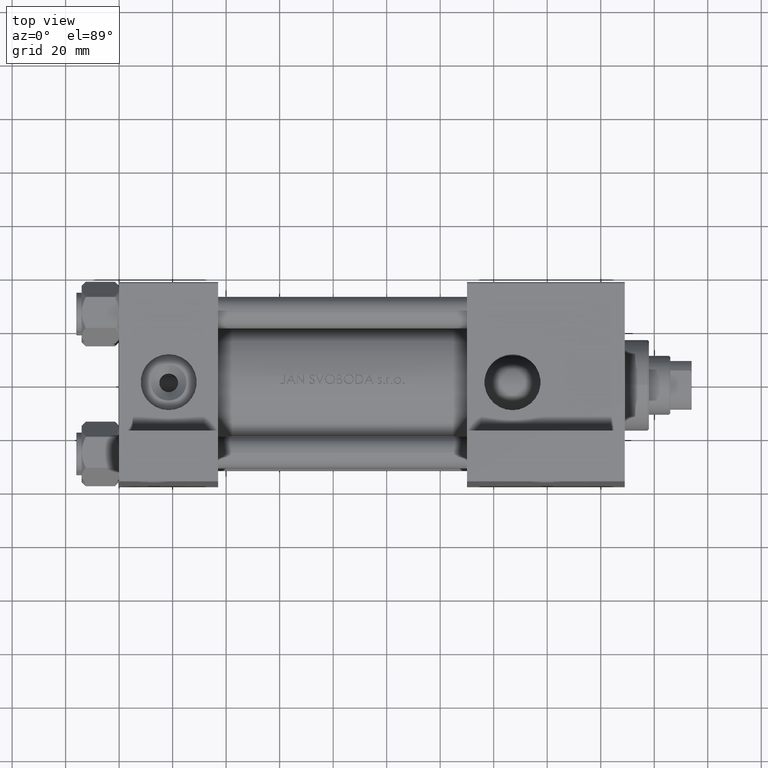
[diagram: clean part render]
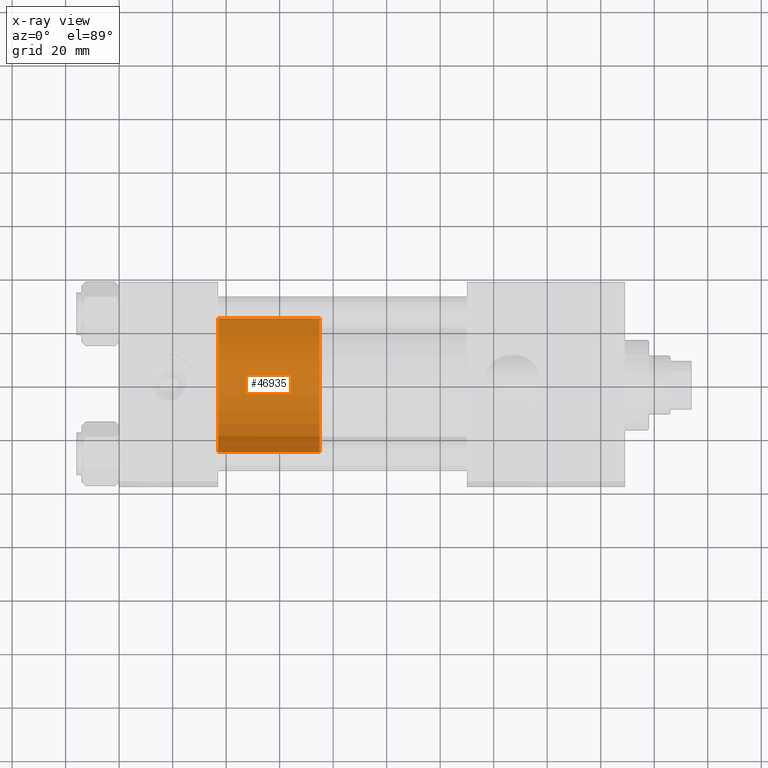
[diagram: x-ray — body ghosted, one internal face saturated and labeled with its STEP entity id]
A machine part, top view, then the same camera in x-ray: the body is ghosted and one INTERNAL B-rep face — a face not visible from any outside direction — is saturated and labeled: STEP entity #46935.
In plain terms, the highlighted cylindrical surface (partial cylindrical patch) has radius 25 mm, axis along (-1, 0, 0).
Its self-contained STEP definition (entity closure, byte-faithful):
#60 = EDGE_CURVE ( 'NONE', #29623, #43035, #26314, .T. ) ;
#605 = CARTESIAN_POINT ( 'NONE',  ( 25.00000000000000000, 3.061616997868383043E-15, 0.000000000000000000 ) ) ;
#4295 = CARTESIAN_POINT ( 'NONE',  ( -25.00000000000000000, 0.000000000000000000, 38.00000000000000000 ) ) ;
#6913 = LINE ( 'NONE', #7154, #44726 ) ;
#7154 = CARTESIAN_POINT ( 'NONE',  ( 25.00000000000000000, 3.061616997868383043E-15, 38.00000000000000000 ) ) ;
#10911 = DIRECTION ( 'NONE',  ( 0.000000000000000000, 0.000000000000000000, 1.000000000000000000 ) ) ;
#16736 = EDGE_LOOP ( 'NONE', ( #34800, #38031, #40783, #42018 ) ) ;
#18543 = DIRECTION ( 'NONE',  ( 1.000000000000000000, 0.000000000000000000, 0.000000000000000000 ) ) ;
#19392 = LINE ( 'NONE', #49277, #48345 ) ;
#20338 = CARTESIAN_POINT ( 'NONE',  ( 0.000000000000000000, 0.000000000000000000, 38.00000000000000000 ) ) ;
#20442 = VERTEX_POINT ( 'NONE', #4295 ) ;
#20830 = DIRECTION ( 'NONE',  ( -0.000000000000000000, -0.000000000000000000, -1.000000000000000000 ) ) ;
#22928 = EDGE_CURVE ( 'NONE', #23687, #20442, #29492, .T. ) ;
#23687 = VERTEX_POINT ( 'NONE', #42535 ) ;
#24767 = EDGE_CURVE ( 'NONE', #23687, #29623, #6913, .T. ) ;
#26097 = DIRECTION ( 'NONE',  ( 1.000000000000000000, 0.000000000000000000, 0.000000000000000000 ) ) ;
#26314 = CIRCLE ( 'NONE', #41536, 25.00000000000000000 ) ;
#26362 = DIRECTION ( 'NONE',  ( -0.000000000000000000, -0.000000000000000000, -1.000000000000000000 ) ) ;
#26751 = CARTESIAN_POINT ( 'NONE',  ( 0.000000000000000000, 0.000000000000000000, 0.000000000000000000 ) ) ;
#29020 = DIRECTION ( 'NONE',  ( -1.000000000000000000, 0.000000000000000000, 0.000000000000000000 ) ) ;
#29492 = CIRCLE ( 'NONE', #41435, 25.00000000000000000 ) ;
#29623 = VERTEX_POINT ( 'NONE', #605 ) ;
#29824 = CARTESIAN_POINT ( 'NONE',  ( 0.000000000000000000, 0.000000000000000000, 38.00000000000000000 ) ) ;
#30542 = FACE_OUTER_BOUND ( 'NONE', #16736, .T. ) ;
#34715 = EDGE_CURVE ( 'NONE', #20442, #43035, #19392, .T. ) ;
#34800 = ORIENTED_EDGE ( 'NONE', *, *, #22928, .F. ) ;
#35860 = AXIS2_PLACEMENT_3D ( 'NONE', #20338, #20830, #29020 ) ;
#38031 = ORIENTED_EDGE ( 'NONE', *, *, #24767, .T. ) ;
#40783 = ORIENTED_EDGE ( 'NONE', *, *, #60, .T. ) ;
#41209 = DIRECTION ( 'NONE',  ( 0.000000000000000000, 0.000000000000000000, 1.000000000000000000 ) ) ;
#41435 = AXIS2_PLACEMENT_3D ( 'NONE', #29824, #10911, #26097 ) ;
#41536 = AXIS2_PLACEMENT_3D ( 'NONE', #26751, #41209, #18543 ) ;
#42018 = ORIENTED_EDGE ( 'NONE', *, *, #34715, .F. ) ;
#42535 = CARTESIAN_POINT ( 'NONE',  ( 25.00000000000000000, 3.061616997868383043E-15, 38.00000000000000000 ) ) ;
#43035 = VERTEX_POINT ( 'NONE', #48906 ) ;
#44726 = VECTOR ( 'NONE', #48267, 1000.000000000000000 ) ;
#45746 = CYLINDRICAL_SURFACE ( 'NONE', #35860, 25.00000000000000000 ) ;
#46935 = ADVANCED_FACE ( 'NONE', ( #30542 ), #45746, .T. ) ;
#48267 = DIRECTION ( 'NONE',  ( -0.000000000000000000, -0.000000000000000000, -1.000000000000000000 ) ) ;
#48345 = VECTOR ( 'NONE', #26362, 1000.000000000000000 ) ;
#48906 = CARTESIAN_POINT ( 'NONE',  ( -25.00000000000000000, 0.000000000000000000, 0.000000000000000000 ) ) ;
#49277 = CARTESIAN_POINT ( 'NONE',  ( -25.00000000000000000, 0.000000000000000000, 38.00000000000000000 ) ) ;